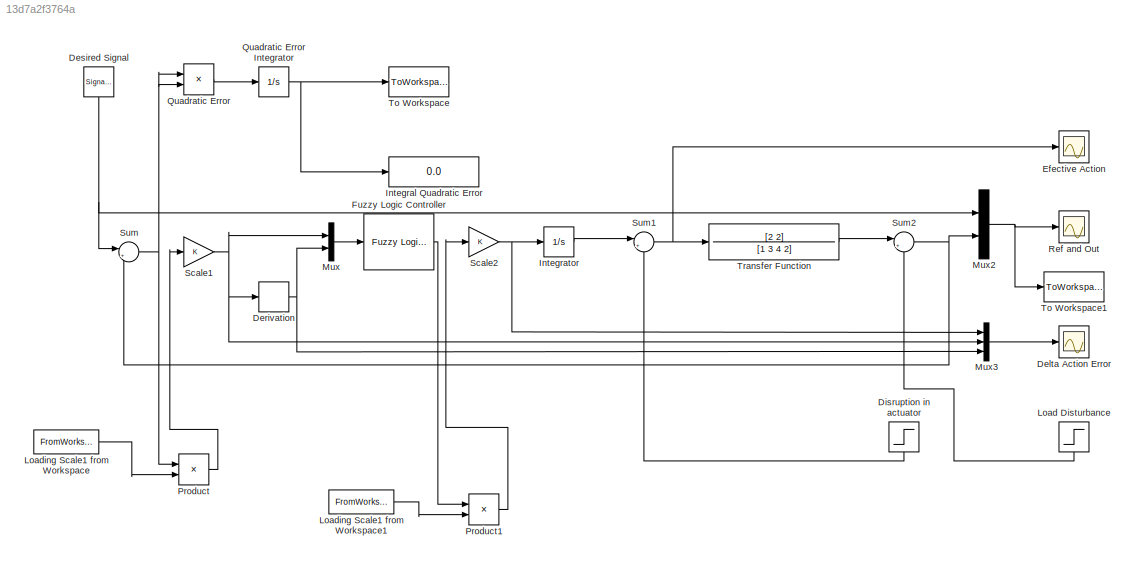
MODEL slx_13d7a2f3764a
KIND model
CONFIG AbsTol = auto
CONFIG EnableMultiTasking = on
CONFIG FixedStep = auto
CONFIG MaxStep = auto
CONFIG MinStep = auto
CONFIG RelTol = 1e-3
CONFIG SampleTimeConstraint = Unconstrained
CONFIG Solver = ode45
CONFIG SolverName = ode45
CONFIG StartTime = 0.0
CONFIG StopTime = 300
BLOCK [Step]                                Load Disturbance   
  After = 0
  SampleTime = 0
  Time = 225
BLOCK [Scope] Delta Action Error
  NumInputPorts = 1
  Ports = [1]
  ScopeSpecificationString = Simulink.scopes.TimeScopeBlockCfg('CurrentConfiguration', extmgr.ConfigurationSet(extmgr.Configuration('Core','General UI',true),extmgr.Configuration('Core','Source UI',true),extmgr.Configuration('Sources','WiredSimulink',true,'DataLoggingSaveFormat','StructureWithTime','DataLoggingLimitDataPoints',true,'DataLoggingDecimation','1','DataLoggingDecimateData',true),extmgr.Configuration('Visuals','Tim...<+1749ch>
BLOCK [Derivative] Derivation
BLOCK [SignalGenerator] Desired Signal   
  Frequency = 0.01
  Ports = [0, 1]
BLOCK [Step] Disruption in actuator     
  After = 0
  SampleTime = 0
  Time = 125
BLOCK [Scope] Efective Action 
  NumInputPorts = 1
  Ports = [1]
  ScopeSpecificationString = Simulink.scopes.TimeScopeBlockCfg('CurrentConfiguration', extmgr.ConfigurationSet(extmgr.Configuration('Core','General UI',true),extmgr.Configuration('Core','Source UI',true),extmgr.Configuration('Sources','WiredSimulink',true,'DataLoggingVariableName','ScopeData2','DataLoggingSaveFormat','StructureWithTime','DataLoggingLimitDataPoints',true,'DataLoggingDecimation','1','DataLoggingDecimateData',tr...<+1685ch>
BLOCK [Reference] Fuzzy Logic Controller  REF=fuzblock/Fuzzy Logic   (lib defined in mdl_858b3b3e7478)
Controller
  Ports = [1, 1]
  SourceBlock = fuzblock/Fuzzy Logic \nController
  SourceProductBaseCode = FL
  SourceProductName = Fuzzy Logic Toolbox
  SourceType = Fuzzy Inference System
BLOCK [Display] Integral Quadratic Error
  Decimation = 1
  Ports = [1]
BLOCK [Integrator] Integrator 
  Ports = [1, 1]
BLOCK [FromWorkspace] Loading Scale1 from Workspace
  SampleTime = 0
  VariableName = s1
  ZeroCross = on
BLOCK [FromWorkspace] Loading Scale1 from Workspace1
  SampleTime = 0
  VariableName = s2
  ZeroCross = on
BLOCK [Mux] Mux
  DisplayOption = bar
  Inputs = 2
  Ports = [2, 1]
BLOCK [Mux] Mux2
  DisplayOption = bar
  Inputs = 2
  Ports = [2, 1]
BLOCK [Mux] Mux3
  DisplayOption = bar
  Inputs = 3
  Ports = [3, 1]
BLOCK [Product] Product
  InputSameDT = off
  OutDataTypeStr = Inherit: Inherit via internal rule
  Ports = [2, 1]
  RndMeth = Floor
  SaturateOnIntegerOverflow = off
BLOCK [Product] Product1
  InputSameDT = off
  OutDataTypeStr = Inherit: Inherit via internal rule
  Ports = [2, 1]
  RndMeth = Floor
  SaturateOnIntegerOverflow = off
BLOCK [Product] Quadratic Error 
  InputSameDT = off
  OutDataTypeStr = Inherit: Inherit via internal rule
  Ports = [2, 1]
  RndMeth = Floor
  SaturateOnIntegerOverflow = off
BLOCK [Integrator] Quadratic Error Integrator 
  Ports = [1, 1]
BLOCK [Scope] Ref and Out
  NumInputPorts = 1
  Ports = [1]
  ScopeSpecificationString = Simulink.scopes.TimeScopeBlockCfg('CurrentConfiguration', extmgr.ConfigurationSet(extmgr.Configuration('Core','General UI',true,'FigureColor',[0 0 0]),extmgr.Configuration('Core','Source UI',true),extmgr.Configuration('Sources','WiredSimulink',true,'DataLoggingVariableName','ScopeData1','DataLoggingSaveFormat','StructureWithTime','DataLoggingLimitDataPoints',true,'DataLoggingDecimation','1','DataL...<+2028ch>
BLOCK [Gain] Scale1
  OutDataTypeStr = Inherit: Inherit via internal rule
  ParamDataTypeStr = Inherit: Inherit via internal rule
  SaturateOnIntegerOverflow = off
BLOCK [Gain] Scale2
  OutDataTypeStr = Inherit: Inherit via internal rule
  ParamDataTypeStr = Inherit: Inherit via internal rule
  SaturateOnIntegerOverflow = off
BLOCK [Sum] Sum
  IconShape = round
  InputSameDT = off
  Inputs = |+-
  OutDataTypeStr = Inherit: Inherit via internal rule
  Ports = [2, 1]
  SaturateOnIntegerOverflow = off
BLOCK [Sum] Sum1
  IconShape = round
  InputSameDT = off
  Inputs = |+-
  OutDataTypeStr = Inherit: Inherit via internal rule
  Ports = [2, 1]
  SaturateOnIntegerOverflow = off
BLOCK [Sum] Sum2
  IconShape = round
  InputSameDT = off
  Inputs = |+-
  OutDataTypeStr = Inherit: Inherit via internal rule
  Ports = [2, 1]
  SaturateOnIntegerOverflow = off
BLOCK [ToWorkspace] To Workspace
  MaxDataPoints = inf
  Ports = [1]
  SampleTime = -1
  SaveFormat = Timeseries
  VariableName = simout
BLOCK [ToWorkspace] To Workspace1
  MaxDataPoints = inf
  Ports = [1]
  SampleTime = -1
  SaveFormat = Timeseries
  VariableName = dataforplot
BLOCK [TransferFcn] Transfer Function
  Denominator = [1 3 4 2]
  Numerator = [2 2]
LINE                                Load Disturbance   :1 -> Sum2:2
NET Derivation:1 -> Mux3:3, Mux:2
NET Desired Signal   :1 -> Mux2:1, Sum:1
LINE Disruption in actuator     :1 -> Sum1:2
LINE Fuzzy Logic Controller:1 -> Product1:1
LINE Integrator :1 -> Sum1:1
LINE Loading Scale1 from Workspace1:1 -> Product1:2
LINE Loading Scale1 from Workspace:1 -> Product:2
NET Mux2:1 -> Ref and Out:1, To Workspace1:1
LINE Mux3:1 -> Delta Action Error:1
LINE Mux:1 -> Fuzzy Logic Controller:1
LINE Product1:1 -> Scale2:1
LINE Product:1 -> Scale1:1
LINE Quadratic Error :1 -> Quadratic Error Integrator :1
NET Quadratic Error Integrator :1 -> Integral Quadratic Error:1, To Workspace:1
NET Scale1:1 -> Derivation:1, Mux3:2, Mux:1
NET Scale2:1 -> Integrator :1, Mux3:1
NET Sum1:1 -> Efective Action :1, Transfer Function:1
NET Sum2:1 -> Mux2:2, Sum:2
NET Sum:1 -> Product:1, Quadratic Error :1, Quadratic Error :2
LINE Transfer Function:1 -> Sum2:1
note: NET lines group one-source signal fan-out (src -> all destinations, sorted); 1:1 wires keep LINE
